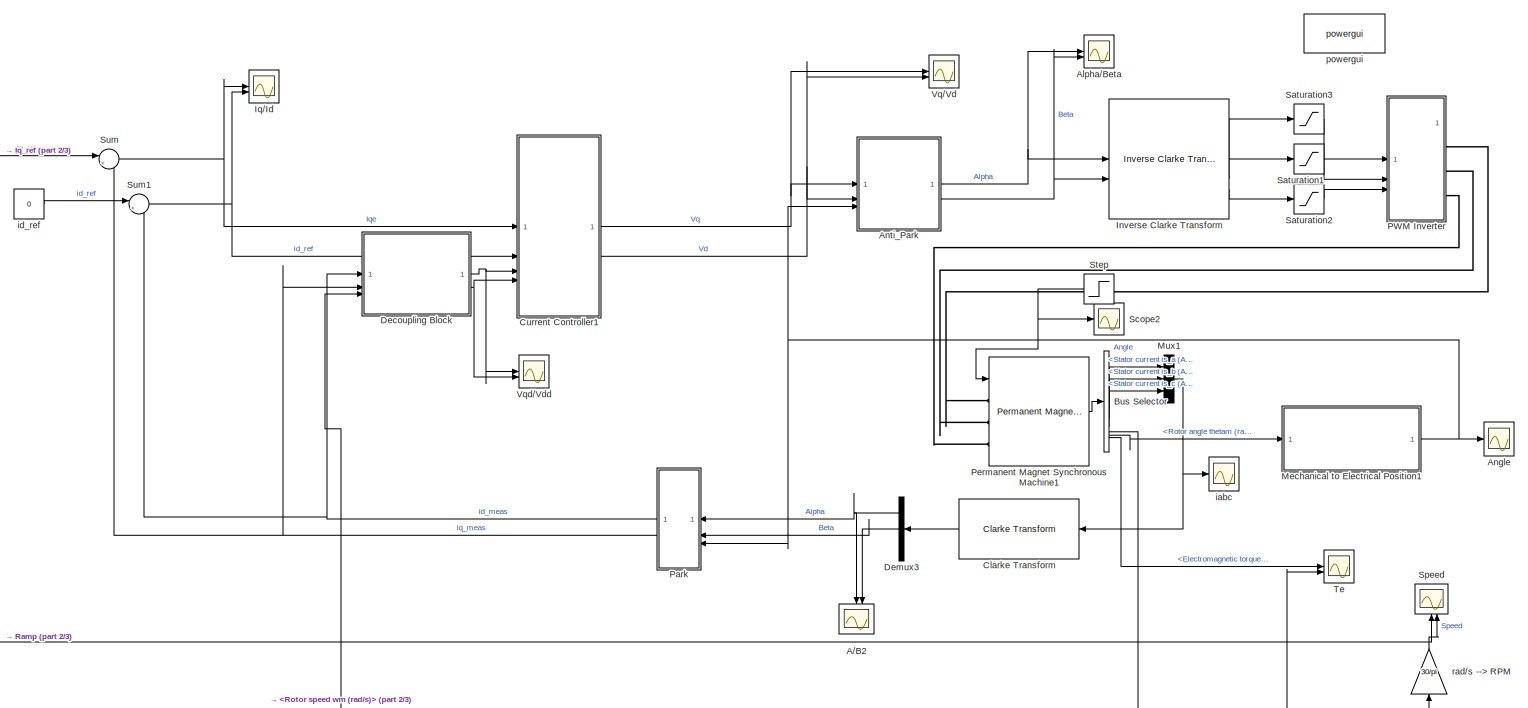
[diagram: root canvas - part 1/3, full width, middle band]
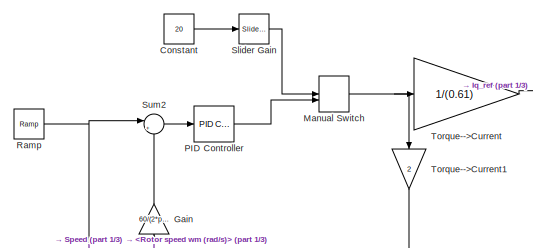
[diagram: root canvas - part 2/3, top left region]
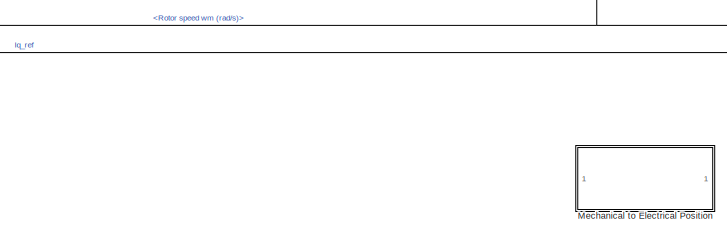
[diagram: root canvas - part 3/3, bottom right region]
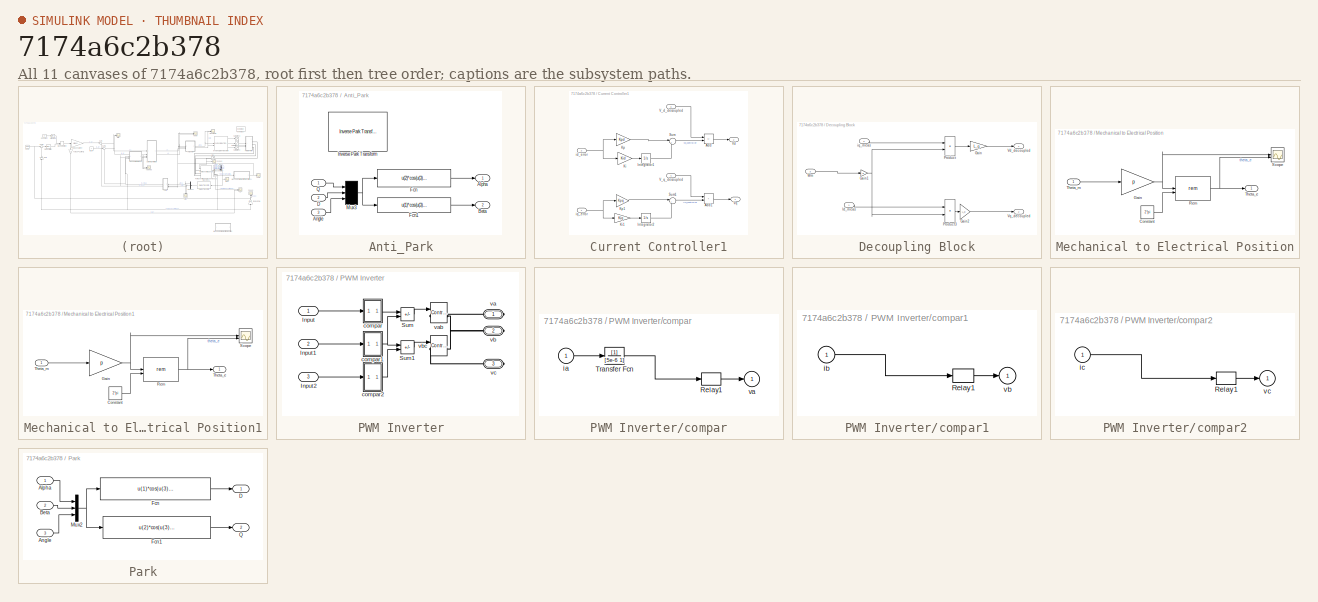
[diagram: thumbnail index - all 11 canvases of the model, root first then tree order]
MODEL slx_7174a6c2b378
KIND model
CONFIG AbsTol = auto
CONFIG EnableMultiTasking = on
CONFIG FixedStep = 0.000025
CONFIG InitFcn = Ts = 10e-6;\n\nR = 0.958;\nLd = 5.25e-3;\nLq = 12e-3;\nPn = 4;\nflux = 0.1827;
CONFIG MaxStep = auto
CONFIG MinStep = 0.000002
CONFIG RelTol = 1e-4
CONFIG SampleTimeConstraint = Unconstrained
CONFIG SolverName = VariableStepAuto
CONFIG StartTime = 0.0
CONFIG StopTime = 2
BLOCK [Scope] A//B2
  Floating = off
  NameLocation = left
  NumInputPorts = 2
  ScopeSpecificationString = Simulink.scopes.TimeScopeBlockCfg('CurrentConfiguration', extmgr.ConfigurationSet(extmgr.Configuration('Core','General UI',true),extmgr.Configuration('Core','Source UI',true),extmgr.Configuration('Sources','WiredSimulink',true,'DataLoggingVariableName','ScopeData4'),extmgr.Configuration('Visuals','Time Domain',true,'SerializedDisplays',{struct('MinYLimReal','-702.41148','MaxYLimReal','606.03219','...<+1605ch>
BLOCK [Scope] Alpha//Beta
  Floating = off
  NumInputPorts = 2
  ScopeSpecificationString = Simulink.scopes.TimeScopeBlockCfg('CurrentConfiguration', extmgr.ConfigurationSet(extmgr.Configuration('Core','General UI',true),extmgr.Configuration('Core','Source UI',true),extmgr.Configuration('Sources','WiredSimulink',true,'DataLoggingVariableName','ScopeData1'),extmgr.Configuration('Visuals','Time Domain',true,'SerializedDisplays',{struct('MinYLimReal','-644.56519','MaxYLimReal','2895.53131',...<+1620ch>
BLOCK [Scope] Angle
  Floating = off
  NumInputPorts = 1
  ScopeSpecificationString = Simulink.scopes.TimeScopeBlockCfg('CurrentConfiguration', extmgr.ConfigurationSet(extmgr.Configuration('Core','General UI',true),extmgr.Configuration('Core','Source UI',true),extmgr.Configuration('Sources','WiredSimulink',true,'DataLoggingVariableName','ScopeData8'),extmgr.Configuration('Visuals','Time Domain',true,'SerializedDisplays',{struct('MinYLimReal','-0.36877','MaxYLimReal','6.47466','YLab...<+1572ch>
BLOCK [SubSystem] Anti_Park
BLOCK [Outport] Anti_Park/Alpha
  VectorParamsAs1DForOutWhenUnconnected = off
BLOCK [Inport] Anti_Park/Angle
  Port = 3
BLOCK [Outport] Anti_Park/Beta
  Port = 2
  VectorParamsAs1DForOutWhenUnconnected = off
BLOCK [Inport] Anti_Park/D
  Port = 2
BLOCK [Fcn] Anti_Park/Fcn
  Expr = u(2)*cos(u(3))-u(1)*sin(u(3))
BLOCK [Fcn] Anti_Park/Fcn1
  Expr = u(1)*cos(u(3))+u(2)*sin(u(3))
BLOCK [Reference] Anti_Park/Inverse Park Transform  REF=mcbcontrolslib/Inverse Park Transform
  LibrarySourceBlock = mcbhdllib/Controls/Math Transforms/Inverse Park Transform
  SourceBlock = mcbcontrolslib/Inverse Park Transform
  SourceType = Inverse Park Transform
BLOCK [Mux] Anti_Park/Mux3
  DisplayOption = signals
  Inputs = 3
BLOCK [Inport] Anti_Park/Q
BLOCK [BusSelector] Bus Selector
  OutputSignals = Stator current is_a (A),Stator current is_b (A),Stator current is_c (A),Rotor speed wm (rad/s),Rotor angle thetam (rad),Electromagnetic torque Te (N*m)
BLOCK [Reference] Clarke Transform  REF=mcbcontrolslib/Clarke Transform
  LibrarySourceBlock = mcblib/Controls/Math Transforms/Clarke Transform
  NameLocation = top
  SourceBlock = mcbcontrolslib/Clarke Transform
  SourceType = Clarke Transform
BLOCK [Constant] Constant
  Value = 20
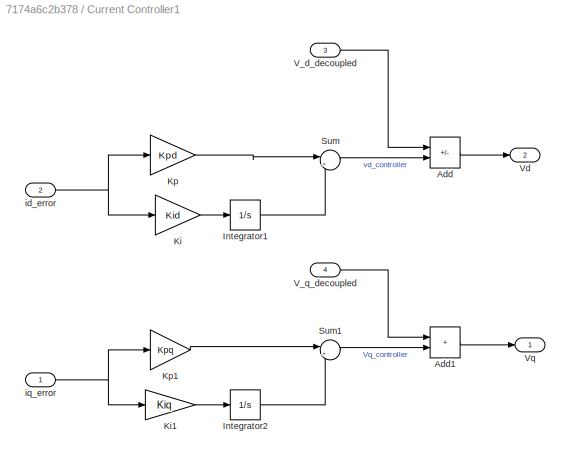
BLOCK [SubSystem] Current Controller1
BLOCK [Sum] Current Controller1/Add
  IconShape = rectangular
  Inputs = -+
BLOCK [Sum] Current Controller1/Add1
  IconShape = rectangular
BLOCK [Integrator] Current Controller1/Integrator1
BLOCK [Integrator] Current Controller1/Integrator2
BLOCK [Gain] Current Controller1/Ki
  Gain = Kid
BLOCK [Gain] Current Controller1/Ki1
  Gain = Kiq
BLOCK [Gain] Current Controller1/Kp
  Gain = Kpd
BLOCK [Gain] Current Controller1/Kp1
  Gain = Kpq
BLOCK [Sum] Current Controller1/Sum
  Inputs = |++
BLOCK [Sum] Current Controller1/Sum1
  Inputs = |++
BLOCK [Inport] Current Controller1/V_d_decoupled
  Port = 3
BLOCK [Inport] Current Controller1/V_q_decoupled
  Port = 4
BLOCK [Outport] Current Controller1/Vd
  Port = 2
BLOCK [Outport] Current Controller1/Vq
BLOCK [Inport] Current Controller1/id_error
  Port = 2
BLOCK [Inport] Current Controller1/iq_error
BLOCK [SubSystem] Decoupling Block
BLOCK [Gain] Decoupling Block/Gain
  Gain = L_q
BLOCK [Gain] Decoupling Block/Gain1
  Gain = p
BLOCK [Gain] Decoupling Block/Gain2
  Gain = L_d
BLOCK [Inport] Decoupling Block/Id_meas
BLOCK [Product] Decoupling Block/Product
BLOCK [Product] Decoupling Block/Product3
BLOCK [Outport] Decoupling Block/Vd_decoupled
BLOCK [Outport] Decoupling Block/Vq_decoupled
  Port = 2
BLOCK [Inport] Decoupling Block/Wm
  Port = 3
BLOCK [Inport] Decoupling Block/iq_meas
  Port = 2
BLOCK [Demux] Demux3
  NameLocation = top
  Outputs = 3
BLOCK [Gain] Gain
  Gain = 60/(2*pi)
  NameLocation = right
BLOCK [Reference] Inverse Clarke Transform  REF=mcbcontrolslib/Inverse Clarke Transform
  LibrarySourceBlock = mcbhdllib/Controls/Math Transforms/Inverse Clarke Transform
  SourceBlock = mcbcontrolslib/Inverse Clarke Transform
  SourceType = Inverse Clarke Transform
BLOCK [Scope] Iq//Id
  Floating = off
  NumInputPorts = 2
  ScopeSpecificationString = Simulink.scopes.TimeScopeBlockCfg('CurrentConfiguration', extmgr.ConfigurationSet(extmgr.Configuration('Core','General UI',true),extmgr.Configuration('Core','Source UI',true),extmgr.Configuration('Sources','WiredSimulink',true,'DataLoggingVariableName','ScopeData2'),extmgr.Configuration('Visuals','Time Domain',true,'SerializedDisplays',{struct('MinYLimReal','-64.82703','MaxYLimReal','80.06275','YL...<+1646ch>
BLOCK [ManualSwitch] Manual Switch
  CurrentSetting = 0
BLOCK [SubSystem] Mechanical to Electrical Position
BLOCK [Constant] Mechanical to Electrical Position/Constant
  Value = 2*pi
BLOCK [Gain] Mechanical to Electrical Position/Gain
  Gain = p
BLOCK [Math] Mechanical to Electrical Position/Rem
  Operator = rem
BLOCK [Scope] Mechanical to Electrical Position/Scope
  Floating = off
  NumInputPorts = 2
  ScopeSpecificationString = Simulink.scopes.TimeScopeBlockCfg('CurrentConfiguration', extmgr.ConfigurationSet(extmgr.Configuration('Core','General UI',true),extmgr.Configuration('Core','Source UI',true),extmgr.Configuration('Sources','WiredSimulink',true),extmgr.Configuration('Visuals','Time Domain',true),extmgr.Configuration('Tools','Plot Navigation',true),extmgr.Configuration('Tools','Measurements',true)),'Version','2024a'...<+1ch>
BLOCK [Outport] Mechanical to Electrical Position/Theta_e
BLOCK [Inport] Mechanical to Electrical Position/Theta_m
BLOCK [SubSystem] Mechanical to Electrical Position1
BLOCK [Constant] Mechanical to Electrical Position1/Constant
  Value = 2*pi
BLOCK [Gain] Mechanical to Electrical Position1/Gain
  Gain = p
BLOCK [Math] Mechanical to Electrical Position1/Rem
  Operator = rem
BLOCK [Scope] Mechanical to Electrical Position1/Scope
  Floating = off
  NumInputPorts = 2
  ScopeSpecificationString = Simulink.scopes.TimeScopeBlockCfg('CurrentConfiguration', extmgr.ConfigurationSet(extmgr.Configuration('Core','General UI',true),extmgr.Configuration('Core','Source UI',true),extmgr.Configuration('Sources','WiredSimulink',true),extmgr.Configuration('Visuals','Time Domain',true),extmgr.Configuration('Tools','Plot Navigation',true),extmgr.Configuration('Tools','Measurements',true)),'Version','2024a'...<+1ch>
BLOCK [Outport] Mechanical to Electrical Position1/Theta_e
BLOCK [Inport] Mechanical to Electrical Position1/Theta_m
BLOCK [Mux] Mux1
  DisplayOption = bar
  Inputs = 3
BLOCK [Reference] PID Controller  REF=slpidlib/PID Controller
  LibrarySourceBlock = simulink/Continuous/PID Controller
  SourceBlock = slpidlib/PID Controller
  SourceType = PID 1dof
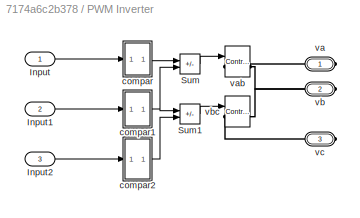
BLOCK [SubSystem] PWM Inverter
BLOCK [Inport] PWM Inverter/Input
  IconDisplay = Signal name
BLOCK [Inport] PWM Inverter/Input1
  IconDisplay = Signal name
  Port = 2
BLOCK [Inport] PWM Inverter/Input2
  IconDisplay = Signal name
  Port = 3
BLOCK [Sum] PWM Inverter/Sum
  IconShape = rectangular
  InputSameDT = on
  Inputs = +-
  OutDataTypeStr = Inherit: Same as first input
  SaturateOnIntegerOverflow = on
BLOCK [Sum] PWM Inverter/Sum1
  IconShape = rectangular
  InputSameDT = on
  Inputs = +-
  OutDataTypeStr = Inherit: Same as first input
  SaturateOnIntegerOverflow = on
BLOCK [SubSystem] PWM Inverter/compar
BLOCK [Relay] PWM Inverter/compar/Relay1
  OffOutputValue = -155
  OffSwitchValue = -0.05
  OnOutputValue = 155
  OnSwitchValue = 0.05
BLOCK [TransferFcn] PWM Inverter/compar/Transfer Fcn
  Denominator = [5e-6 1]
BLOCK [Inport] PWM Inverter/compar/ia
BLOCK [Outport] PWM Inverter/compar/va
  InitialOutput = 0
  VectorParamsAs1DForOutWhenUnconnected = off
BLOCK [SubSystem] PWM Inverter/compar1
BLOCK [Relay] PWM Inverter/compar1/Relay1
  OffOutputValue = -155
  OffSwitchValue = -0.05
  OnOutputValue = 155
  OnSwitchValue = 0.05
BLOCK [Inport] PWM Inverter/compar1/ib
BLOCK [Outport] PWM Inverter/compar1/vb
  InitialOutput = 0
  VectorParamsAs1DForOutWhenUnconnected = off
BLOCK [SubSystem] PWM Inverter/compar2
BLOCK [Relay] PWM Inverter/compar2/Relay1
  OffOutputValue = -155
  OffSwitchValue = -0.05
  OnOutputValue = 155
  OnSwitchValue = 0.05
BLOCK [Inport] PWM Inverter/compar2/ic
BLOCK [Outport] PWM Inverter/compar2/vc
  InitialOutput = 0
  VectorParamsAs1DForOutWhenUnconnected = off
BLOCK [PMIOPort] PWM Inverter/va
  NameLocation = top
  Side = Right
BLOCK [Reference] PWM Inverter/vab  REF=spsControlledVoltageSourceLib/Controlled Voltage Source
  AttributesFormatString = \n
  Description = source block
  LibrarySourceBlock = sps_lib/Sources/Controlled Voltage Source
  SourceBlock = spsControlledVoltageSourceLib/Controlled Voltage Source
  SourceType = Controlled Voltage Source
BLOCK [PMIOPort] PWM Inverter/vb
  Port = 2
  Side = Right
BLOCK [Reference] PWM Inverter/vbc  REF=spsControlledVoltageSourceLib/Controlled Voltage Source
  AttributesFormatString = \n
  Description = source block
  LibrarySourceBlock = sps_lib/Sources/Controlled Voltage Source
  SourceBlock = spsControlledVoltageSourceLib/Controlled Voltage Source
  SourceType = Controlled Voltage Source
BLOCK [PMIOPort] PWM Inverter/vc
  Port = 3
  Side = Right
BLOCK [SubSystem] Park
BLOCK [Inport] Park/Alpha
BLOCK [Inport] Park/Angle
  Port = 3
BLOCK [Inport] Park/Beta
  Port = 2
BLOCK [Outport] Park/D
  VectorParamsAs1DForOutWhenUnconnected = off
BLOCK [Fcn] Park/Fcn
  Expr = u(1)*cos(u(3))+u(2)*sin(u(3))
BLOCK [Fcn] Park/Fcn1
  Expr = u(2)*cos(u(3))-u(1)*sin(u(3))
BLOCK [Mux] Park/Mux2
  DisplayOption = bar
  Inputs = 3
BLOCK [Outport] Park/Q
  Port = 2
  VectorParamsAs1DForOutWhenUnconnected = off
BLOCK [Reference] Permanent Magnet Synchronous Machine1  REF=spsPermanentMagnetSynchronousMachineLib/Permanent Magnet
Synchronous Machine
  LibrarySourceBlock = sps_lib/Electrical Machines/Permanent Magnet\nSynchronous Machine
  SourceBlock = spsPermanentMagnetSynchronousMachineLib/Permanent Magnet\nSynchronous Machine
  SourceType = Permanent Magnet Synchronous Machine
BLOCK [Reference] Ramp  REF=simulink/Sources/Ramp
  SourceBlock = simulink/Sources/Ramp
  SourceType = Ramp
BLOCK [Saturate] Saturation1
  LowerLimit = -vdc/sqrt(2)
  UpperLimit = vdc/sqrt(2)
BLOCK [Saturate] Saturation2
  LowerLimit = -vdc/sqrt(2)
  UpperLimit = vdc/sqrt(2)
BLOCK [Saturate] Saturation3
  LowerLimit = -vdc/sqrt(2)
  UpperLimit = vdc/sqrt(2)
BLOCK [Scope] Scope2
  Floating = off
  NumInputPorts = 1
  ScopeSpecificationString = Simulink.scopes.TimeScopeBlockCfg('CurrentConfiguration', extmgr.ConfigurationSet(extmgr.Configuration('Core','General UI',true),extmgr.Configuration('Core','Source UI',true),extmgr.Configuration('Sources','WiredSimulink',true,'DataLoggingVariableName','ScopeData10'),extmgr.Configuration('Visuals','Time Domain',true,'SerializedDisplays',{struct('MinYLimReal','-1.00000','MaxYLimReal','1.00000','YLa...<+1632ch>
BLOCK [Reference] Slider Gain  REF=simulink/Math
Operations/Slider
Gain
  SourceBlock = simulink/Math\nOperations/Slider\nGain
  SourceType = Slider Gain
BLOCK [Scope] Speed
  Floating = off
  NameLocation = right
  NumInputPorts = 2
  ScopeSpecificationString = Simulink.scopes.TimeScopeBlockCfg('CurrentConfiguration', extmgr.ConfigurationSet(extmgr.Configuration('Core','General UI',true),extmgr.Configuration('Core','Source UI',true),extmgr.Configuration('Sources','WiredSimulink',true,'DataLoggingVariableName','ScopeData7'),extmgr.Configuration('Visuals','Time Domain',true,'SerializedDisplays',{struct('MinYLimReal','-276.78959','MaxYLimReal','2252.02186',...<+1614ch>
BLOCK [Step] Step
  After = 50
  NameLocation = top
  SampleTime = 0
  Time = 0.1
BLOCK [Sum] Sum
  Inputs = |+-
BLOCK [Sum] Sum1
  Inputs = |+-
BLOCK [Sum] Sum2
  Inputs = |+-
BLOCK [Scope] Te
  Floating = off
  NameLocation = top
  NumInputPorts = 2
  ScopeSpecificationString = Simulink.scopes.TimeScopeBlockCfg('CurrentConfiguration', extmgr.ConfigurationSet(extmgr.Configuration('Core','General UI',true),extmgr.Configuration('Core','Source UI',true),extmgr.Configuration('Sources','WiredSimulink',true,'DataLogging',true,'DataLoggingVariableName','Te','DataLoggingSaveFormat','StructureWithTime','DataLoggingDecimation','1','DataLoggingDecimateData',true),extmgr.Configuratio...<+1882ch>
BLOCK [Gain] Torque-->Current
  Gain = 1/(0.61)
BLOCK [Gain] Torque-->Current1
  Gain = 2
  NameLocation = left
BLOCK [Scope] Vq//Vd
  Floating = off
  NumInputPorts = 2
  ScopeSpecificationString = Simulink.scopes.TimeScopeBlockCfg('CurrentConfiguration', extmgr.ConfigurationSet(extmgr.Configuration('Core','General UI',true),extmgr.Configuration('Core','Source UI',true),extmgr.Configuration('Sources','WiredSimulink',true,'DataLoggingVariableName','ScopeData1'),extmgr.Configuration('Visuals','Time Domain',true,'SerializedDisplays',{struct('MinYLimReal','-644.56519','MaxYLimReal','2895.53131',...<+1615ch>
BLOCK [Scope] Vqd//Vdd
  Floating = off
  NumInputPorts = 2
  ScopeSpecificationString = Simulink.scopes.TimeScopeBlockCfg('CurrentConfiguration', extmgr.ConfigurationSet(extmgr.Configuration('Core','General UI',true),extmgr.Configuration('Core','Source UI',true),extmgr.Configuration('Sources','WiredSimulink',true,'DataLoggingVariableName','ScopeData9'),extmgr.Configuration('Visuals','Time Domain',true,'SerializedDisplays',{struct('MinYLimReal','-13.65188','MaxYLimReal','48.39503','YL...<+1589ch>
BLOCK [Scope] iabc
  Floating = off
  NumInputPorts = 1
  ScopeSpecificationString = Simulink.scopes.TimeScopeBlockCfg('CurrentConfiguration', extmgr.ConfigurationSet(extmgr.Configuration('Core','General UI',true),extmgr.Configuration('Core','Source UI',true),extmgr.Configuration('Sources','WiredSimulink',true,'DataLogging',true,'DataLoggingVariableName','Iabc','DataLoggingSaveFormat','StructureWithTime','DataLoggingDecimation','1','DataLoggingDecimateData',true),extmgr.Configurat...<+1936ch>
BLOCK [Constant] id_ref
  Value = 0
BLOCK [Reference] powergui  REF=sps_lib/powergui
  LibrarySourceBlock = sps_lib/powergui
  Priority = 1
  SourceBlock = sps_lib/powergui
  SourceType = PSB option menu block
BLOCK [Gain] rad//s --> RPM
  Gain = 30/pi
  NameLocation = right
LINE Anti_Park/Angle:1 -> Anti_Park/Mux3:3
LINE Anti_Park/D:1 -> Anti_Park/Mux3:2
LINE Anti_Park/Fcn1:1 -> Anti_Park/Beta:1
LINE Anti_Park/Fcn:1 -> Anti_Park/Alpha:1
NET Anti_Park/Mux3:1 -> Anti_Park/Fcn1:1, Anti_Park/Fcn:1
LINE Anti_Park/Q:1 -> Anti_Park/Mux3:1
NET Anti_Park:1 -> Alpha//Beta:1, Inverse Clarke Transform:1
NET Anti_Park:2 -> Alpha//Beta:2, Inverse Clarke Transform:2
LINE Bus Selector:1 -> Mux1:1
LINE Bus Selector:2 -> Mux1:2
LINE Bus Selector:3 -> Mux1:3
NET Bus Selector:4 -> Decoupling Block:3, Gain:1, rad//s --> RPM:1
LINE Bus Selector:5 -> Mechanical to Electrical Position1:1
LINE Bus Selector:6 -> Te:1
LINE Clarke Transform:1 -> Demux3:1
LINE Constant:1 -> Slider Gain:1
LINE Current Controller1/Add1:1 -> Current Controller1/Vq:1
LINE Current Controller1/Add:1 -> Current Controller1/Vd:1
LINE Current Controller1/Integrator1:1 -> Current Controller1/Sum:2
LINE Current Controller1/Integrator2:1 -> Current Controller1/Sum1:2
LINE Current Controller1/Ki1:1 -> Current Controller1/Integrator2:1
LINE Current Controller1/Ki:1 -> Current Controller1/Integrator1:1
LINE Current Controller1/Kp1:1 -> Current Controller1/Sum1:1
LINE Current Controller1/Kp:1 -> Current Controller1/Sum:1
LINE Current Controller1/Sum1:1 -> Current Controller1/Add1:2
LINE Current Controller1/Sum:1 -> Current Controller1/Add:2
LINE Current Controller1/V_d_decoupled:1 -> Current Controller1/Add:1
LINE Current Controller1/V_q_decoupled:1 -> Current Controller1/Add1:1
NET Current Controller1/id_error:1 -> Current Controller1/Ki:1, Current Controller1/Kp:1
NET Current Controller1/iq_error:1 -> Current Controller1/Ki1:1, Current Controller1/Kp1:1
NET Current Controller1:1 -> Anti_Park:1, Vq//Vd:1
NET Current Controller1:2 -> Anti_Park:2, Vq//Vd:2
NET Decoupling Block/Gain1:1 -> Decoupling Block/Product3:2, Decoupling Block/Product:2
LINE Decoupling Block/Gain2:1 -> Decoupling Block/Vq_decoupled:1
LINE Decoupling Block/Gain:1 -> Decoupling Block/Vd_decoupled:1
LINE Decoupling Block/Id_meas:1 -> Decoupling Block/Product3:1
LINE Decoupling Block/Product3:1 -> Decoupling Block/Gain2:1
LINE Decoupling Block/Product:1 -> Decoupling Block/Gain:1
LINE Decoupling Block/Wm:1 -> Decoupling Block/Gain1:1
LINE Decoupling Block/iq_meas:1 -> Decoupling Block/Product:1
NET Decoupling Block:1 -> Current Controller1:3, Vqd//Vdd:1
NET Decoupling Block:2 -> Current Controller1:4, Vqd//Vdd:2
NET Demux3:1 -> A//B2:1, Park:1
NET Demux3:2 -> A//B2:2, Park:2
LINE Gain:1 -> Sum2:2
LINE Inverse Clarke Transform:1 -> Saturation3:1
LINE Inverse Clarke Transform:2 -> Saturation1:1
LINE Inverse Clarke Transform:3 -> Saturation2:1
NET Manual Switch:1 -> Torque-->Current1:1, Torque-->Current:1
LINE Mechanical to Electrical Position/Constant:1 -> Mechanical to Electrical Position/Rem:2
NET Mechanical to Electrical Position/Gain:1 -> Mechanical to Electrical Position/Rem:1, Mechanical to Electrical Position/Scope:1
NET Mechanical to Electrical Position/Rem:1 -> Mechanical to Electrical Position/Scope:2, Mechanical to Electrical Position/Theta_e:1
LINE Mechanical to Electrical Position/Theta_m:1 -> Mechanical to Electrical Position/Gain:1
LINE Mechanical to Electrical Position1/Constant:1 -> Mechanical to Electrical Position1/Rem:2
NET Mechanical to Electrical Position1/Gain:1 -> Mechanical to Electrical Position1/Rem:1, Mechanical to Electrical Position1/Scope:1
NET Mechanical to Electrical Position1/Rem:1 -> Mechanical to Electrical Position1/Scope:2, Mechanical to Electrical Position1/Theta_e:1
LINE Mechanical to Electrical Position1/Theta_m:1 -> Mechanical to Electrical Position1/Gain:1
NET Mechanical to Electrical Position1:1 -> Angle:1, Anti_Park:3, Park:3
NET Mux1:1 -> Clarke Transform:1, iabc:1
LINE PID Controller:1 -> Manual Switch:2
LINE PWM Inverter/Input1:1 -> PWM Inverter/compar1:1
LINE PWM Inverter/Input2:1 -> PWM Inverter/compar2:1
LINE PWM Inverter/Input:1 -> PWM Inverter/compar:1
LINE PWM Inverter/Sum1:1 -> PWM Inverter/vbc:1
LINE PWM Inverter/Sum:1 -> PWM Inverter/vab:1
LINE PWM Inverter/compar/Relay1:1 -> PWM Inverter/compar/va:1
LINE PWM Inverter/compar/Transfer Fcn:1 -> PWM Inverter/compar/Relay1:1
LINE PWM Inverter/compar/ia:1 -> PWM Inverter/compar/Transfer Fcn:1
LINE PWM Inverter/compar1/Relay1:1 -> PWM Inverter/compar1/vb:1
LINE PWM Inverter/compar1/ib:1 -> PWM Inverter/compar1/Relay1:1
NET PWM Inverter/compar1:1 -> PWM Inverter/Sum1:1, PWM Inverter/Sum:2
LINE PWM Inverter/compar2/Relay1:1 -> PWM Inverter/compar2/vc:1
LINE PWM Inverter/compar2/ic:1 -> PWM Inverter/compar2/Relay1:1
LINE PWM Inverter/compar2:1 -> PWM Inverter/Sum1:2
LINE PWM Inverter/compar:1 -> PWM Inverter/Sum:1
LINE Park/Alpha:1 -> Park/Mux2:1
LINE Park/Angle:1 -> Park/Mux2:3
LINE Park/Beta:1 -> Park/Mux2:2
LINE Park/Fcn1:1 -> Park/Q:1
LINE Park/Fcn:1 -> Park/D:1
NET Park/Mux2:1 -> Park/Fcn1:1, Park/Fcn:1
NET Park:1 -> Decoupling Block:1, Sum1:2
NET Park:2 -> Decoupling Block:2, Sum:2
LINE Permanent Magnet Synchronous Machine1:1 -> Bus Selector:1
NET Ramp:1 -> Speed:1, Sum2:1
LINE Saturation1:1 -> PWM Inverter:2
LINE Saturation2:1 -> PWM Inverter:3
LINE Saturation3:1 -> PWM Inverter:1
LINE Slider Gain:1 -> Manual Switch:1
NET Step:1 -> Permanent Magnet Synchronous Machine1:1, Scope2:1
NET Sum1:1 -> Current Controller1:2, Iq//Id:2
LINE Sum2:1 -> PID Controller:1
NET Sum:1 -> Current Controller1:1, Iq//Id:1
LINE Torque-->Current1:1 -> Te:2
LINE Torque-->Current:1 -> Sum:1
LINE id_ref:1 -> Sum1:1
LINE rad//s --> RPM:1 -> Speed:2
PLINE PWM Inverter/va:RConn1 -- PWM Inverter/vab:RConn1
PNET net1: PWM Inverter/vab:LConn1 -- PWM Inverter/vb:RConn1 -- PWM Inverter/vbc:RConn1
PLINE PWM Inverter/vbc:LConn1 -- PWM Inverter/vc:RConn1
PLINE PWM Inverter:RConn1 -- Permanent Magnet Synchronous Machine1:LConn1
PLINE PWM Inverter:RConn2 -- Permanent Magnet Synchronous Machine1:LConn2
PLINE PWM Inverter:RConn3 -- Permanent Magnet Synchronous Machine1:LConn3
note: NET lines group one-source signal fan-out (src -> all destinations, sorted); 1:1 wires keep LINE; PNET lines group multi-terminal physical nets as a canonical sorted terminal list (undirected conserving connections); 2-terminal nets keep the pairwise PLINE form
